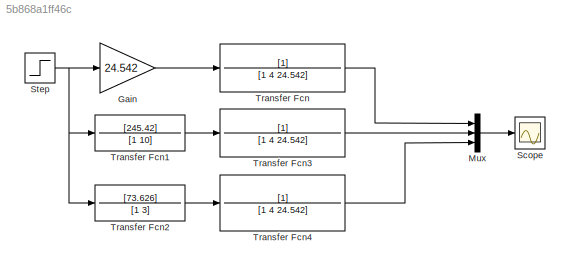
MODEL slx_5b868a1ff46c
KIND model
CONFIG AbsTol = auto
CONFIG EnableMultiTasking = off
CONFIG FixedStep = auto
CONFIG MaxStep = auto
CONFIG MinStep = auto
CONFIG RelTol = 1e-3
CONFIG SampleTimeConstraint = Unconstrained
CONFIG Solver = ode45
CONFIG SolverName = ode45
CONFIG StartTime = 0.0
CONFIG StopTime = 3
BLOCK [Gain] Gain
  Gain = 24.542
BLOCK [Mux] Mux
  DisplayOption = bar
  Inputs = 3
  Ports = [3, 1]
BLOCK [Scope] Scope
  Floating = off
  NumInputPorts = 1
  Ports = [1]
  ScopeSpecificationString = Simulink.scopes.TimeScopeBlockCfg('CurrentConfiguration', extmgr.ConfigurationSet(extmgr.Configuration('Core','General UI',true),extmgr.Configuration('Core','Source UI',true),extmgr.Configuration('Sources','WiredSimulink',true,'DataLoggingLimitDataPoints',true),extmgr.Configuration('Visuals','Time Domain',true,'SerializedDisplays',{struct('MinYLimReal','0','MaxYLimReal','2','YLabelReal','','MinYLi...<+1401ch>
BLOCK [Step] Step
  SampleTime = 0
  Time = 0
BLOCK [TransferFcn] Transfer Fcn
  Denominator = [1 4 24.542]
BLOCK [TransferFcn] Transfer Fcn1
  Denominator = [1 10]
  Numerator = [245.42]
BLOCK [TransferFcn] Transfer Fcn2
  Denominator = [1 3]
  Numerator = [73.626]
BLOCK [TransferFcn] Transfer Fcn3
  Denominator = [1 4 24.542]
BLOCK [TransferFcn] Transfer Fcn4
  Denominator = [1 4 24.542]
LINE Gain:1 -> Transfer Fcn:1
LINE Mux:1 -> Scope:1
NET Step:1 -> Gain:1, Transfer Fcn1:1, Transfer Fcn2:1
LINE Transfer Fcn1:1 -> Transfer Fcn3:1
LINE Transfer Fcn2:1 -> Transfer Fcn4:1
LINE Transfer Fcn3:1 -> Mux:2
LINE Transfer Fcn4:1 -> Mux:3
LINE Transfer Fcn:1 -> Mux:1
note: NET lines group one-source signal fan-out (src -> all destinations, sorted); 1:1 wires keep LINE
